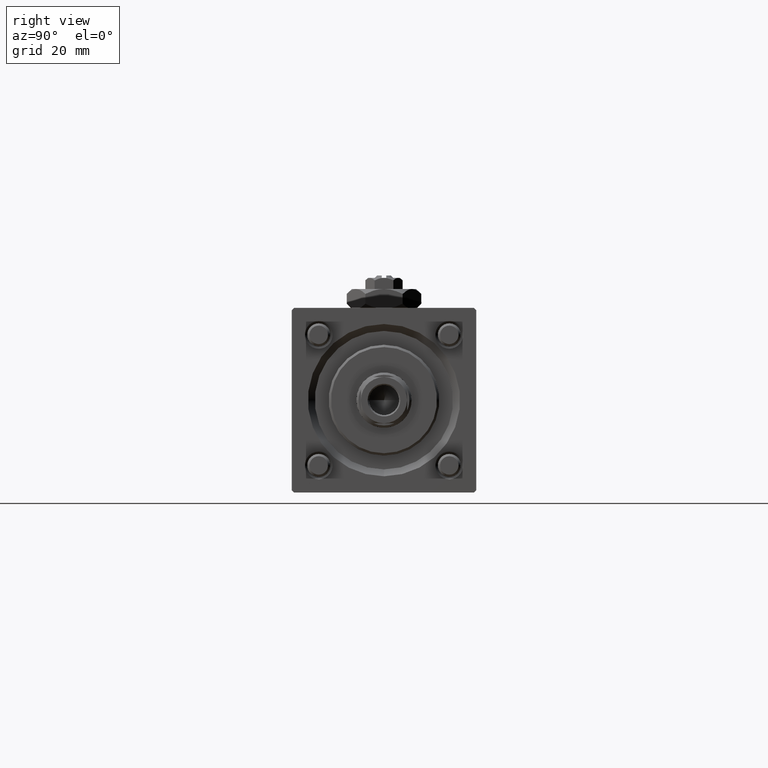
[diagram: clean part render]
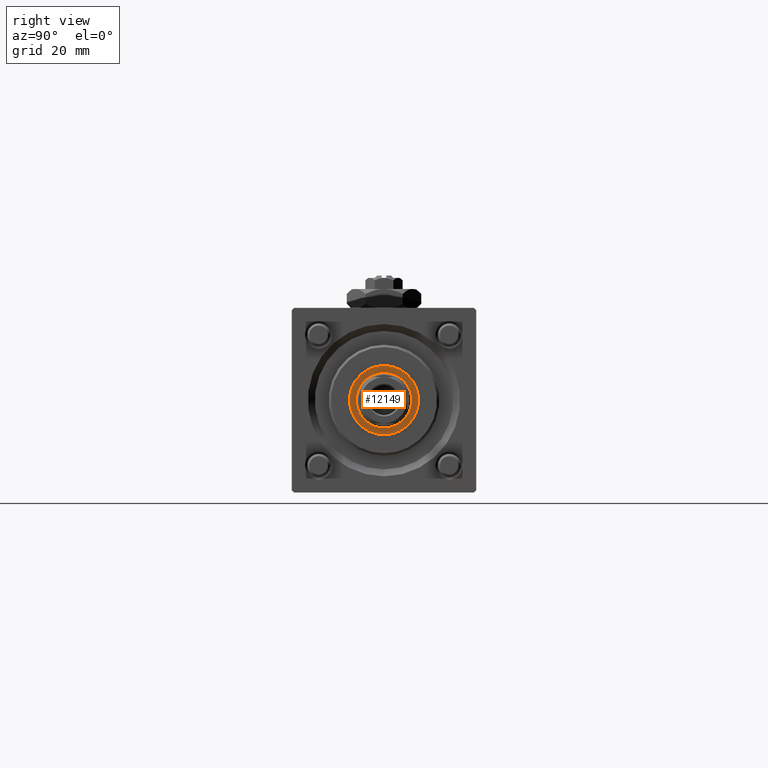
[diagram: same view with one face highlighted and labeled with its STEP entity id]
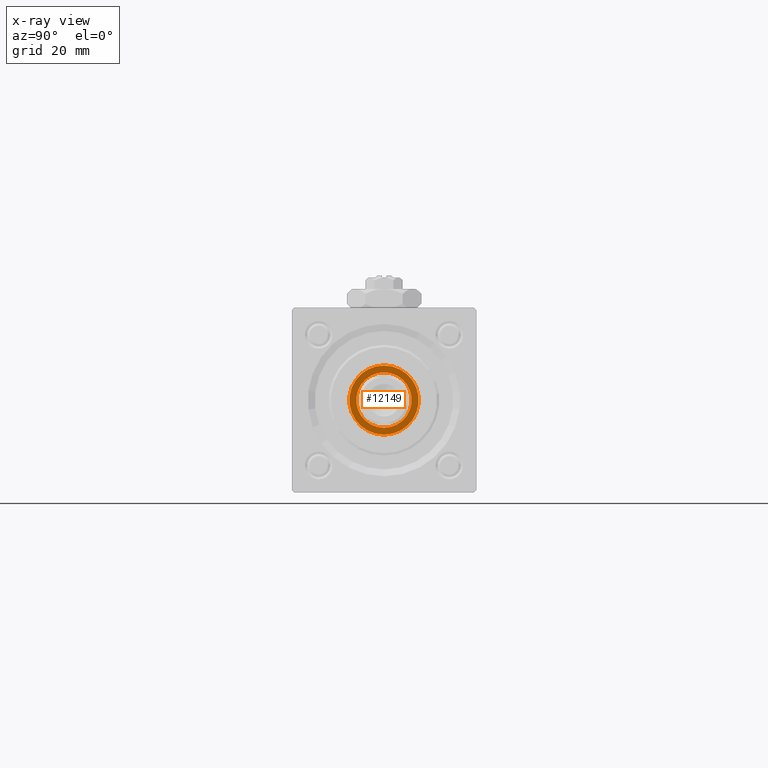
[diagram: x-ray of the same camera — body ghosted, the highlighted face saturated]
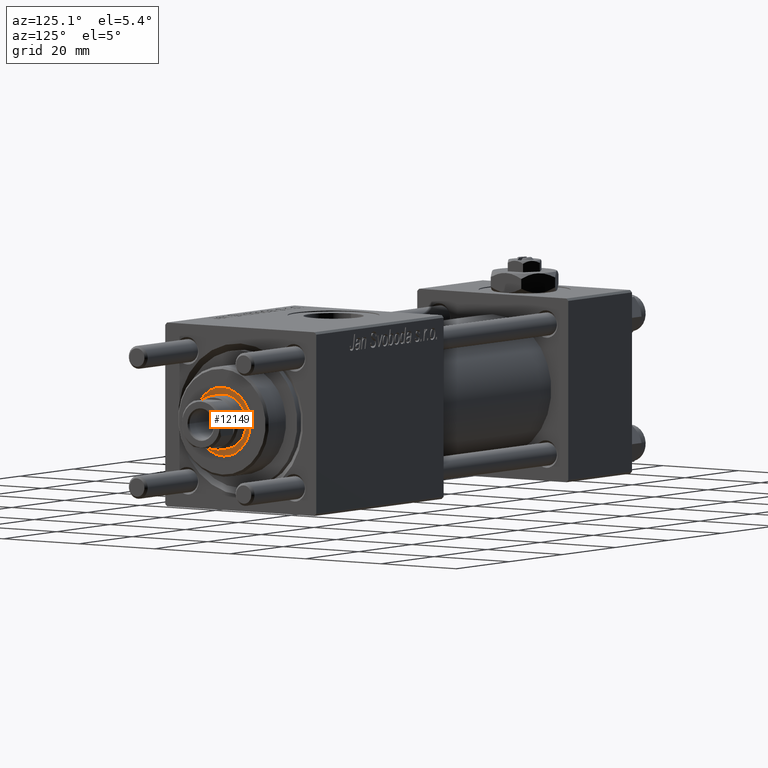
[diagram: same view with one face highlighted and labeled with its STEP entity id]
A machine part, right view. The second image highlights one B-rep face of the part: STEP entity #12149.
The next image is the same camera in x-ray: the body ghosted, the highlighted face saturated — about 0% of this face is hidden behind the body in this view.
A second angle (auxiliary view) of the same face is appended — the face is thin or edge-on in the first view.
In plain terms, the highlighted planar face has unit normal (1, 0, 0).
Its self-contained STEP definition (entity closure, byte-faithful):
#1737 = CARTESIAN_POINT ( 'NONE',  ( 0.000000000000000000, 0.000000000000000000, 35.20000000000000284 ) ) ;
#3752 = CIRCLE ( 'NONE', #48124, 6.000000000000000888 ) ;
#4520 = ORIENTED_EDGE ( 'NONE', *, *, #56886, .T. ) ;
#5039 = DIRECTION ( 'NONE',  ( 0.000000000000000000, 0.000000000000000000, 1.000000000000000000 ) ) ;
#6167 = FACE_OUTER_BOUND ( 'NONE', #20861, .T. ) ;
#8774 = EDGE_LOOP ( 'NONE', ( #42399, #16016 ) ) ;
#9193 = CIRCLE ( 'NONE', #31845, 7.500000000000000888 ) ;
#9729 = CARTESIAN_POINT ( 'NONE',  ( 0.000000000000000000, 0.000000000000000000, 35.20000000000000284 ) ) ;
#10903 = FACE_BOUND ( 'NONE', #8774, .T. ) ;
#12149 = ADVANCED_FACE ( 'NONE', ( #6167, #10903 ), #46654, .T. ) ;
#13117 = DIRECTION ( 'NONE',  ( 0.000000000000000000, 0.000000000000000000, 1.000000000000000000 ) ) ;
#13304 = DIRECTION ( 'NONE',  ( -0.000000000000000000, -0.000000000000000000, -1.000000000000000000 ) ) ;
#16016 = ORIENTED_EDGE ( 'NONE', *, *, #24473, .T. ) ;
#18131 = DIRECTION ( 'NONE',  ( 1.000000000000000000, 0.000000000000000000, 0.000000000000000000 ) ) ;
#19219 = DIRECTION ( 'NONE',  ( 1.000000000000000000, 0.000000000000000000, 0.000000000000000000 ) ) ;
#20861 = EDGE_LOOP ( 'NONE', ( #26621, #4520 ) ) ;
#21422 = VERTEX_POINT ( 'NONE', #43788 ) ;
#23066 = DIRECTION ( 'NONE',  ( 1.000000000000000000, 0.000000000000000000, 0.000000000000000000 ) ) ;
#24411 = EDGE_CURVE ( 'NONE', #51259, #21422, #9193, .T. ) ;
#24473 = EDGE_CURVE ( 'NONE', #44742, #34952, #49772, .T. ) ;
#24776 = DIRECTION ( 'NONE',  ( 0.000000000000000000, 0.000000000000000000, 1.000000000000000000 ) ) ;
#25183 = CARTESIAN_POINT ( 'NONE',  ( 6.000000000000000888, 0.000000000000000000, 35.20000000000000284 ) ) ;
#26621 = ORIENTED_EDGE ( 'NONE', *, *, #24411, .T. ) ;
#26632 = DIRECTION ( 'NONE',  ( -0.000000000000000000, -0.000000000000000000, -1.000000000000000000 ) ) ;
#27737 = DIRECTION ( 'NONE',  ( 1.000000000000000000, 0.000000000000000000, 0.000000000000000000 ) ) ;
#30836 = CARTESIAN_POINT ( 'NONE',  ( 0.000000000000000000, 0.000000000000000000, 35.20000000000000284 ) ) ;
#31313 = EDGE_CURVE ( 'NONE', #34952, #44742, #3752, .T. ) ;
#31845 = AXIS2_PLACEMENT_3D ( 'NONE', #31942, #5039, #23066 ) ;
#31942 = CARTESIAN_POINT ( 'NONE',  ( 0.000000000000000000, 0.000000000000000000, 35.20000000000000284 ) ) ;
#32813 = CARTESIAN_POINT ( 'NONE',  ( 7.500000000000000888, 0.000000000000000000, 35.20000000000000284 ) ) ;
#34952 = VERTEX_POINT ( 'NONE', #25183 ) ;
#38674 = CIRCLE ( 'NONE', #54740, 7.500000000000000888 ) ;
#42223 = DIRECTION ( 'NONE',  ( 1.000000000000000000, 0.000000000000000000, -0.000000000000000000 ) ) ;
#42399 = ORIENTED_EDGE ( 'NONE', *, *, #31313, .T. ) ;
#43788 = CARTESIAN_POINT ( 'NONE',  ( -7.500000000000000888, 9.184850993605149917E-16, 35.20000000000000284 ) ) ;
#44742 = VERTEX_POINT ( 'NONE', #52977 ) ;
#45161 = AXIS2_PLACEMENT_3D ( 'NONE', #1737, #24776, #42223 ) ;
#46654 = PLANE ( 'NONE',  #45161 ) ;
#48124 = AXIS2_PLACEMENT_3D ( 'NONE', #9729, #13304, #27737 ) ;
#48846 = AXIS2_PLACEMENT_3D ( 'NONE', #50536, #26632, #19219 ) ;
#49772 = CIRCLE ( 'NONE', #48846, 6.000000000000000888 ) ;
#50536 = CARTESIAN_POINT ( 'NONE',  ( 0.000000000000000000, 0.000000000000000000, 35.20000000000000284 ) ) ;
#51259 = VERTEX_POINT ( 'NONE', #32813 ) ;
#52977 = CARTESIAN_POINT ( 'NONE',  ( -6.000000000000000888, 7.347880794884119736E-16, 35.20000000000000284 ) ) ;
#54740 = AXIS2_PLACEMENT_3D ( 'NONE', #30836, #13117, #18131 ) ;
#56886 = EDGE_CURVE ( 'NONE', #21422, #51259, #38674, .T. ) ;